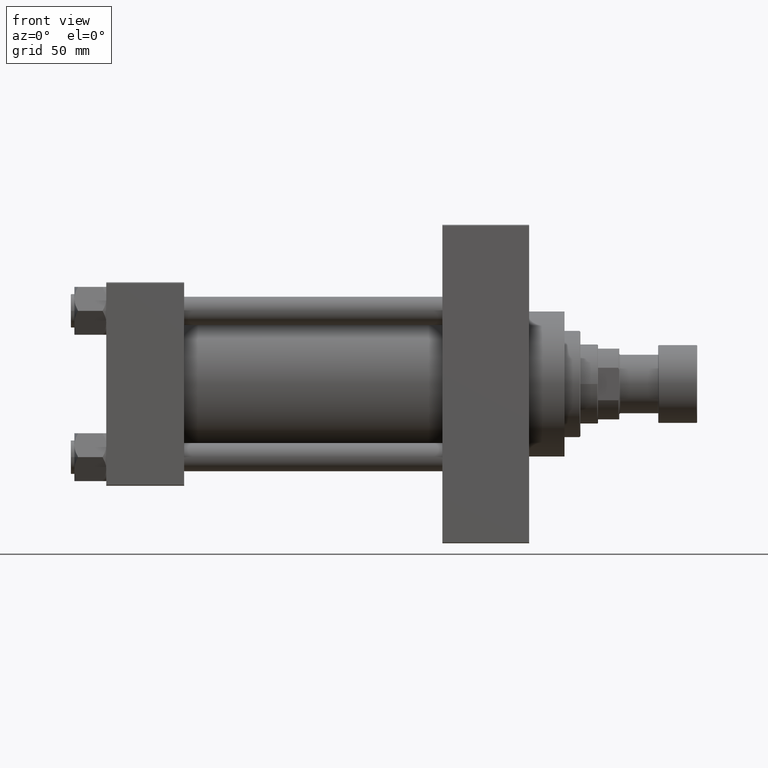
[diagram: clean part render]
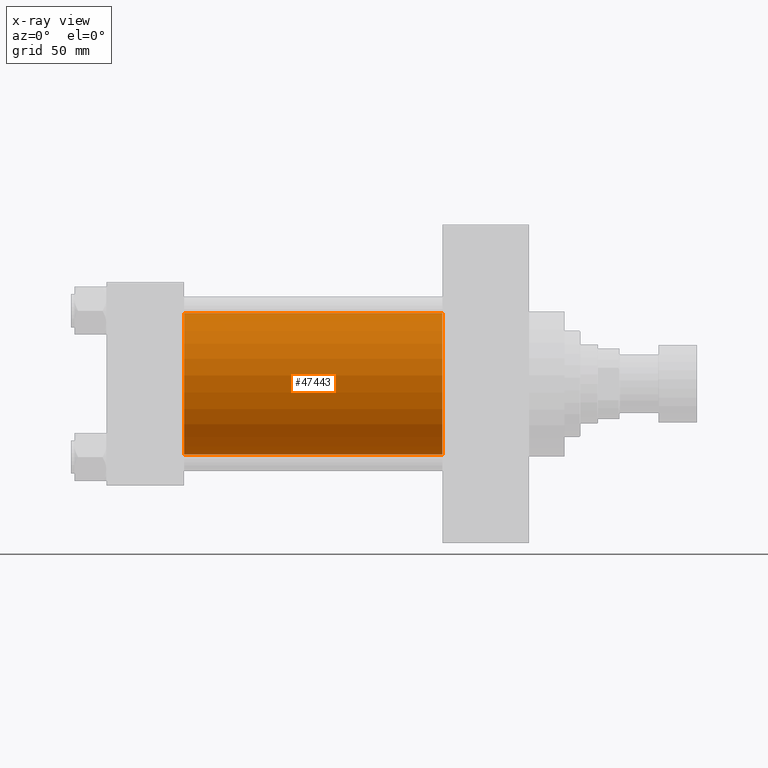
[diagram: x-ray — body ghosted, one internal face saturated and labeled with its STEP entity id]
A machine part, front view, then the same camera in x-ray: the body is ghosted and one INTERNAL B-rep face — a face not visible from any outside direction — is saturated and labeled: STEP entity #47443.
In plain terms, the highlighted cylindrical surface (partial cylindrical patch) has radius 40 mm, axis along (-1, -0, -0).
Its self-contained STEP definition (entity closure, byte-faithful):
#513 = AXIS2_PLACEMENT_3D ( 'NONE', #41875, #1308, #41397 ) ;
#1308 = DIRECTION ( 'NONE',  ( 1.000000000000000000, 0.000000000000000000, 0.000000000000000000 ) ) ;
#2358 = DIRECTION ( 'NONE',  ( -1.000000000000000000, -0.000000000000000000, -0.000000000000000000 ) ) ;
#3639 = AXIS2_PLACEMENT_3D ( 'NONE', #23814, #19916, #42853 ) ;
#4916 = ORIENTED_EDGE ( 'NONE', *, *, #43919, .F. ) ;
#7412 = CYLINDRICAL_SURFACE ( 'NONE', #13882, 40.00000000000000000 ) ;
#8326 = ORIENTED_EDGE ( 'NONE', *, *, #34552, .F. ) ;
#8568 = VERTEX_POINT ( 'NONE', #43072 ) ;
#11840 = ORIENTED_EDGE ( 'NONE', *, *, #45597, .T. ) ;
#12193 = DIRECTION ( 'NONE',  ( 0.000000000000000000, 0.000000000000000000, 1.000000000000000000 ) ) ;
#12929 = EDGE_CURVE ( 'NONE', #8568, #46732, #25424, .T. ) ;
#13147 = VERTEX_POINT ( 'NONE', #35169 ) ;
#13605 = VECTOR ( 'NONE', #2358, 1000.000000000000000 ) ;
#13882 = AXIS2_PLACEMENT_3D ( 'NONE', #36467, #40627, #12193 ) ;
#15021 = VERTEX_POINT ( 'NONE', #38487 ) ;
#17683 = CIRCLE ( 'NONE', #3639, 40.00000000000000000 ) ;
#19916 = DIRECTION ( 'NONE',  ( 1.000000000000000000, 0.000000000000000000, 0.000000000000000000 ) ) ;
#22013 = DIRECTION ( 'NONE',  ( -1.000000000000000000, -0.000000000000000000, -0.000000000000000000 ) ) ;
#23814 = CARTESIAN_POINT ( 'NONE',  ( 44.00000000000000000, -2.602085213965210642E-15, 0.000000000000000000 ) ) ;
#24082 = EDGE_LOOP ( 'NONE', ( #11840, #24735, #4916, #8326 ) ) ;
#24712 = CIRCLE ( 'NONE', #513, 40.00000000000000000 ) ;
#24735 = ORIENTED_EDGE ( 'NONE', *, *, #12929, .T. ) ;
#25424 = LINE ( 'NONE', #35935, #33423 ) ;
#25716 = FACE_OUTER_BOUND ( 'NONE', #24082, .T. ) ;
#32313 = CARTESIAN_POINT ( 'NONE',  ( 44.00000000000000000, 2.296501982624201990E-15, -40.00000000000000000 ) ) ;
#33423 = VECTOR ( 'NONE', #22013, 1000.000000000000000 ) ;
#34552 = EDGE_CURVE ( 'NONE', #13147, #15021, #39480, .T. ) ;
#35169 = CARTESIAN_POINT ( 'NONE',  ( 190.0000000000000000, -2.602085213965210642E-15, 40.00000000000000000 ) ) ;
#35812 = CARTESIAN_POINT ( 'NONE',  ( 190.0000000000000000, -2.602085213965210642E-15, 40.00000000000000000 ) ) ;
#35935 = CARTESIAN_POINT ( 'NONE',  ( 190.0000000000000000, 2.296501982624201990E-15, -40.00000000000000000 ) ) ;
#36467 = CARTESIAN_POINT ( 'NONE',  ( 190.0000000000000000, -2.602085213965210642E-15, 0.000000000000000000 ) ) ;
#38487 = CARTESIAN_POINT ( 'NONE',  ( 44.00000000000000000, -2.602085213965210642E-15, 40.00000000000000000 ) ) ;
#39480 = LINE ( 'NONE', #35812, #13605 ) ;
#40627 = DIRECTION ( 'NONE',  ( -1.000000000000000000, -0.000000000000000000, -0.000000000000000000 ) ) ;
#41397 = DIRECTION ( 'NONE',  ( 0.000000000000000000, 0.000000000000000000, -1.000000000000000000 ) ) ;
#41875 = CARTESIAN_POINT ( 'NONE',  ( 190.0000000000000000, -2.602085213965210642E-15, 0.000000000000000000 ) ) ;
#42853 = DIRECTION ( 'NONE',  ( 0.000000000000000000, 0.000000000000000000, -1.000000000000000000 ) ) ;
#43072 = CARTESIAN_POINT ( 'NONE',  ( 190.0000000000000000, 2.296501982624201990E-15, -40.00000000000000000 ) ) ;
#43919 = EDGE_CURVE ( 'NONE', #15021, #46732, #17683, .T. ) ;
#45597 = EDGE_CURVE ( 'NONE', #13147, #8568, #24712, .T. ) ;
#46732 = VERTEX_POINT ( 'NONE', #32313 ) ;
#47443 = ADVANCED_FACE ( 'NONE', ( #25716 ), #7412, .F. ) ;